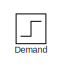
[diagram: root canvas - part 1/3, top left region]
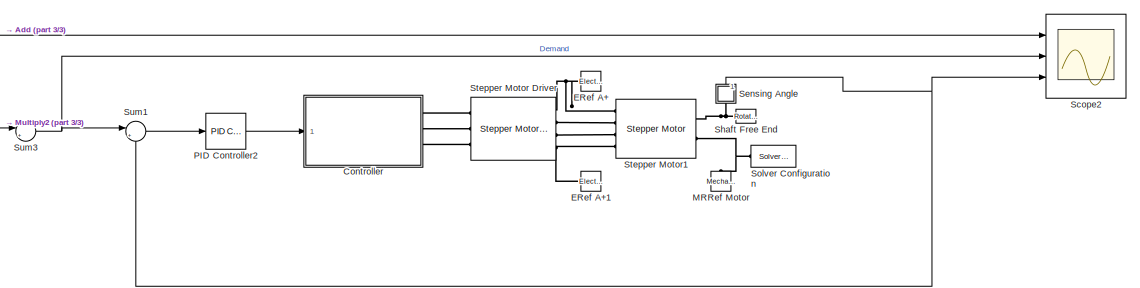
[diagram: root canvas - part 2/3, central region]
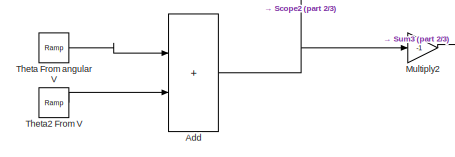
[diagram: root canvas - part 3/3, middle left region]
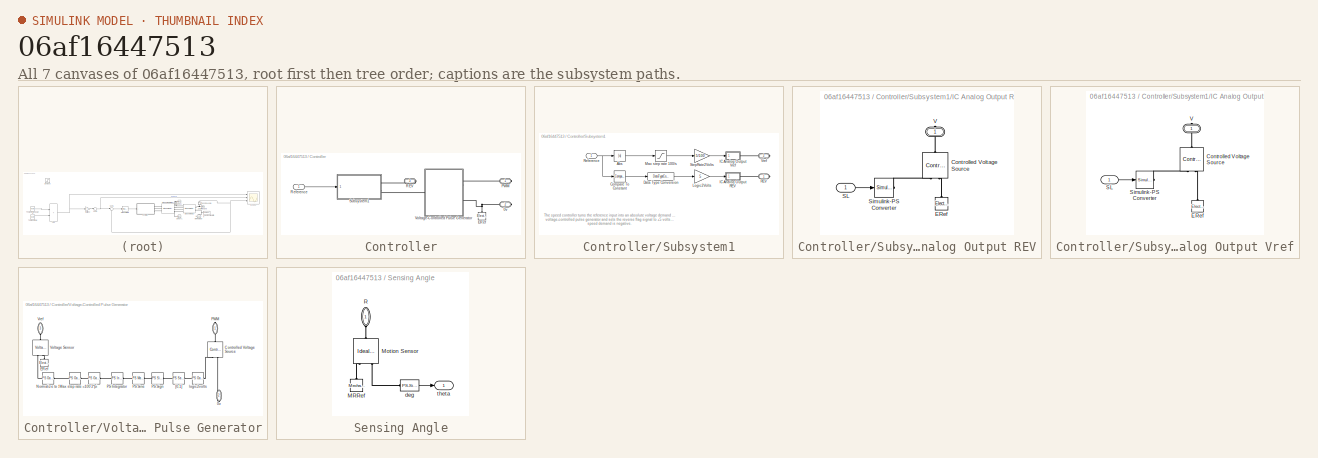
[diagram: thumbnail index - all 7 canvases of the model, root first then tree order]
MODEL slx_06af16447513
KIND model
CONFIG AbsTol = auto
CONFIG EnableMultiTasking = off
CONFIG FixedStep = auto
CONFIG MaxStep = auto
CONFIG MinStep = auto
CONFIG RelTol = 1e-3
CONFIG SampleTimeConstraint = Unconstrained
CONFIG SolverName = VariableStepAuto
CONFIG StartTime = 0.0
CONFIG StopTime = 50
BLOCK [Sum] Add
  IconShape = rectangular
  Ports = [2, 1]
BLOCK [SubSystem] Controller
  Ports = [1, 0, 0, 0, 0, 0, 3]
  RequestExecContextInheritance = off
BLOCK [PMIOPort] Controller/0v
  Port = 2
  Side = Right
BLOCK [Reference] Controller/ERef  REF=fl_lib/Electrical/Electrical Elements/Electrical Reference
  NameLocation = right
  Ports = [0, 0, 0, 0, 0, 1]
  SourceBlock = fl_lib/Electrical/Electrical Elements/Electrical Reference
  SourceProductName = Foundation Library
  SourceType = Electrical Reference
BLOCK [PMIOPort] Controller/PWM
  Side = Right
BLOCK [PMIOPort] Controller/REV
  Port = 3
  Side = Right
BLOCK [Inport] Controller/Reference
  NameLocation = top
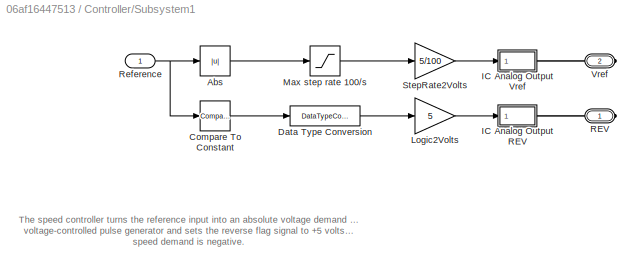
BLOCK [SubSystem] Controller/Subsystem1
  Ports = [1, 0, 0, 0, 0, 0, 2]
  RequestExecContextInheritance = off
BLOCK [Abs] Controller/Subsystem1/Abs
  SaturateOnIntegerOverflow = off
BLOCK [Reference] Controller/Subsystem1/Compare To Constant  REF=simulink/Logic and Bit
Operations/Compare
To Constant
  Ports = [1, 1]
  SourceBlock = simulink/Logic and Bit\nOperations/Compare\nTo Constant
  SourceProductBaseCode = SL
  SourceType = Compare To Constant
BLOCK [DataTypeConversion] Controller/Subsystem1/Data Type Conversion
  RndMeth = Floor
  SaturateOnIntegerOverflow = off
BLOCK [SubSystem] Controller/Subsystem1/IC Analog Output REV
  Ports = [1, 0, 0, 0, 0, 0, 1]
  RequestExecContextInheritance = off
BLOCK [Reference] Controller/Subsystem1/IC Analog Output REV/Controlled Voltage Source  REF=fl_lib/Electrical/Electrical Sources/Controlled Voltage
Source
  NameLocation = right
  Ports = [0, 0, 0, 0, 0, 1, 2]
  SourceBlock = fl_lib/Electrical/Electrical Sources/Controlled Voltage\nSource
  SourceProductName = Foundation Library
  SourceType = Controlled Voltage\nSource
BLOCK [Reference] Controller/Subsystem1/IC Analog Output REV/ERef  REF=fl_lib/Electrical/Electrical Elements/Electrical Reference
  NameLocation = right
  Ports = [0, 0, 0, 0, 0, 1]
  SourceBlock = fl_lib/Electrical/Electrical Elements/Electrical Reference
  SourceProductName = Foundation Library
  SourceType = Electrical Reference
BLOCK [Inport] Controller/Subsystem1/IC Analog Output REV/SL
BLOCK [Reference] Controller/Subsystem1/IC Analog Output REV/Simulink-PS Converter  REF=nesl_utility/Simulink-PS
Converter
  Ports = [1, 0, 0, 0, 0, 0, 1]
  SourceBlock = nesl_utility/Simulink-PS\nConverter
  SourceProductName = Utilities
  SourceType = Simulink-PS\nConverter
BLOCK [PMIOPort] Controller/Subsystem1/IC Analog Output REV/V
  NameLocation = right
  Side = Right
BLOCK [SubSystem] Controller/Subsystem1/IC Analog Output Vref
  Ports = [1, 0, 0, 0, 0, 0, 1]
  RequestExecContextInheritance = off
BLOCK [Reference] Controller/Subsystem1/IC Analog Output Vref/Controlled Voltage Source  REF=fl_lib/Electrical/Electrical Sources/Controlled Voltage
Source
  NameLocation = right
  Ports = [0, 0, 0, 0, 0, 1, 2]
  SourceBlock = fl_lib/Electrical/Electrical Sources/Controlled Voltage\nSource
  SourceProductName = Foundation Library
  SourceType = Controlled Voltage\nSource
BLOCK [Reference] Controller/Subsystem1/IC Analog Output Vref/ERef  REF=fl_lib/Electrical/Electrical Elements/Electrical Reference
  NameLocation = right
  Ports = [0, 0, 0, 0, 0, 1]
  SourceBlock = fl_lib/Electrical/Electrical Elements/Electrical Reference
  SourceProductName = Foundation Library
  SourceType = Electrical Reference
BLOCK [Inport] Controller/Subsystem1/IC Analog Output Vref/SL
BLOCK [Reference] Controller/Subsystem1/IC Analog Output Vref/Simulink-PS Converter  REF=nesl_utility/Simulink-PS
Converter
  Ports = [1, 0, 0, 0, 0, 0, 1]
  SourceBlock = nesl_utility/Simulink-PS\nConverter
  SourceProductName = Utilities
  SourceType = Simulink-PS\nConverter
BLOCK [PMIOPort] Controller/Subsystem1/IC Analog Output Vref/V
  NameLocation = right
  Side = Right
BLOCK [Gain] Controller/Subsystem1/Logic2Volts
  Gain = 5
BLOCK [Saturate] Controller/Subsystem1/Max step rate 100//s
  LowerLimit = 0
  UpperLimit = 100
BLOCK [PMIOPort] Controller/Subsystem1/REV
  Side = Right
BLOCK [Inport] Controller/Subsystem1/Reference
  NameLocation = top
BLOCK [Gain] Controller/Subsystem1/StepRate2Volts
  Gain = 5/100
BLOCK [PMIOPort] Controller/Subsystem1/Vref
  Port = 2
  Side = Right
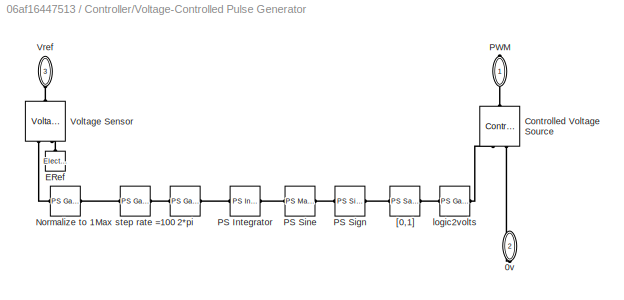
BLOCK [SubSystem] Controller/Voltage-Controlled Pulse Generator
  Ports = [0, 0, 0, 0, 0, 1, 2]
  RequestExecContextInheritance = off
BLOCK [PMIOPort] Controller/Voltage-Controlled Pulse Generator/0v
  NameLocation = left
  Port = 2
  Side = Right
BLOCK [Reference] Controller/Voltage-Controlled Pulse Generator/2*pi  REF=fl_ps_legacy_lib/Legacy Physical
Signals/Functions/PS Gain
  Ports = [0, 0, 0, 0, 0, 1, 1]
  SourceBlock = fl_ps_legacy_lib/Legacy Physical\nSignals/Functions/PS Gain
  SourceProductBaseCode = SS
  SourceType = PS Gain
BLOCK [Reference] Controller/Voltage-Controlled Pulse Generator/Controlled Voltage Source  REF=fl_lib/Electrical/Electrical Sources/Controlled Voltage
Source
  NameLocation = left
  Ports = [0, 0, 0, 0, 0, 1, 2]
  SourceBlock = fl_lib/Electrical/Electrical Sources/Controlled Voltage\nSource
  SourceProductName = Foundation Library
  SourceType = Controlled Voltage\nSource
BLOCK [Reference] Controller/Voltage-Controlled Pulse Generator/ERef  REF=fl_lib/Electrical/Electrical Elements/Electrical Reference
  NameLocation = right
  Ports = [0, 0, 0, 0, 0, 1]
  SourceBlock = fl_lib/Electrical/Electrical Elements/Electrical Reference
  SourceProductName = Foundation Library
  SourceType = Electrical Reference
BLOCK [Reference] Controller/Voltage-Controlled Pulse Generator/Max step rate =100  REF=fl_ps_legacy_lib/Legacy Physical
Signals/Functions/PS Gain
  NameLocation = top
  Ports = [0, 0, 0, 0, 0, 1, 1]
  SourceBlock = fl_ps_legacy_lib/Legacy Physical\nSignals/Functions/PS Gain
  SourceProductBaseCode = SS
  SourceType = PS Gain
BLOCK [Reference] Controller/Voltage-Controlled Pulse Generator/Normalize to 1  REF=fl_ps_legacy_lib/Legacy Physical
Signals/Functions/PS Gain
  Ports = [0, 0, 0, 0, 0, 1, 1]
  SourceBlock = fl_ps_legacy_lib/Legacy Physical\nSignals/Functions/PS Gain
  SourceProductBaseCode = SS
  SourceType = PS Gain
BLOCK [Reference] Controller/Voltage-Controlled Pulse Generator/PS Integrator  REF=fl_ps_legacy_lib/Legacy Physical
Signals/Linear Operators/PS Integrator
  NameLocation = top
  Ports = [0, 0, 0, 0, 0, 1, 1]
  SourceBlock = fl_ps_legacy_lib/Legacy Physical\nSignals/Linear Operators/PS Integrator
  SourceProductBaseCode = SS
  SourceType = PS Integrator
BLOCK [Reference] Controller/Voltage-Controlled Pulse Generator/PS Sign  REF=fl_ps_legacy_lib/Legacy Physical
Signals/Nonlinear Operators/PS Sign
  Ports = [0, 0, 0, 0, 0, 1, 1]
  SourceBlock = fl_ps_legacy_lib/Legacy Physical\nSignals/Nonlinear Operators/PS Sign
  SourceProductBaseCode = SS
  SourceType = PS Sign
BLOCK [Reference] Controller/Voltage-Controlled Pulse Generator/PS Sine  REF=fl_ps_legacy_lib/Legacy Physical
Signals/Functions/PS Math Function
  Ports = [0, 0, 0, 0, 0, 1, 1]
  SourceBlock = fl_ps_legacy_lib/Legacy Physical\nSignals/Functions/PS Math Function
  SourceProductBaseCode = SS
  SourceType = PS Math Function
BLOCK [PMIOPort] Controller/Voltage-Controlled Pulse Generator/PWM
  NameLocation = left
  Side = Right
BLOCK [Reference] Controller/Voltage-Controlled Pulse Generator/Voltage Sensor  REF=fl_lib/Electrical/Electrical Sensors/Voltage Sensor
  NameLocation = right
  Ports = [0, 0, 0, 0, 0, 1, 2]
  SourceBlock = fl_lib/Electrical/Electrical Sensors/Voltage Sensor
  SourceProductName = Foundation Library
  SourceType = Voltage Sensor
BLOCK [PMIOPort] Controller/Voltage-Controlled Pulse Generator/Vref
  NameLocation = right
  Port = 3
  Side = Left
BLOCK [Reference] Controller/Voltage-Controlled Pulse Generator/[0,1]  REF=fl_ps_legacy_lib/Legacy Physical
Signals/Nonlinear Operators/PS Saturation
  Ports = [0, 0, 0, 0, 0, 1, 1]
  SourceBlock = fl_ps_legacy_lib/Legacy Physical\nSignals/Nonlinear Operators/PS Saturation
  SourceProductBaseCode = SS
  SourceType = PS Saturation
BLOCK [Reference] Controller/Voltage-Controlled Pulse Generator/logic2volts  REF=fl_ps_legacy_lib/Legacy Physical
Signals/Functions/PS Gain
  Ports = [0, 0, 0, 0, 0, 1, 1]
  SourceBlock = fl_ps_legacy_lib/Legacy Physical\nSignals/Functions/PS Gain
  SourceProductBaseCode = SS
  SourceType = PS Gain
BLOCK [Step] Demand
  After = 10
  SampleTime = 0
BLOCK [Reference] ERef A+  REF=fl_lib/Electrical/Electrical Elements/Electrical Reference
  NameLocation = top
  Ports = [0, 0, 0, 0, 0, 1]
  SourceBlock = fl_lib/Electrical/Electrical Elements/Electrical Reference
  SourceProductName = Foundation Library
  SourceType = Electrical Reference
BLOCK [Reference] ERef A+1  REF=fl_lib/Electrical/Electrical Elements/Electrical Reference
  NameLocation = top
  Ports = [0, 0, 0, 0, 0, 1]
  SourceBlock = fl_lib/Electrical/Electrical Elements/Electrical Reference
  SourceProductName = Foundation Library
  SourceType = Electrical Reference
BLOCK [Reference] MRRef Motor  REF=fl_lib/Mechanical/Rotational Elements/Mechanical
Rotational Reference
  NameLocation = left
  Ports = [0, 0, 0, 0, 0, 1]
  SourceBlock = fl_lib/Mechanical/Rotational Elements/Mechanical\nRotational Reference
  SourceProductName = Foundation Library
  SourceType = Mechanical\nRotational Reference
BLOCK [Gain] Multiply2
  Gain = -1
BLOCK [Reference] PID Controller2  REF=pid_lib/PID Controller
  Ports = [1, 1]
  SourceBlock = pid_lib/PID Controller
  SourceProductBaseCode = SL
  SourceType = PID 1dof
BLOCK [Scope] Scope2
  Floating = off
  NumInputPorts = 3
  Ports = [3]
  ScopeSpecificationString = Simulink.scopes.TimeScopeBlockCfg('CurrentConfiguration', extmgr.ConfigurationSet(extmgr.Configuration('Core','General UI',true),extmgr.Configuration('Core','Source UI',true),extmgr.Configuration('Sources','WiredSimulink',true,'DataLoggingVariableName','ScopeData1'),extmgr.Configuration('Visuals','Time Domain',true,'SerializedDisplays',{struct('MinYLimReal','-124.97781','MaxYLimReal','124.97781','...<+1498ch>
BLOCK [SubSystem] Sensing Angle
  NameLocation = left
  Ports = [0, 1, 0, 0, 0, 1]
  RequestExecContextInheritance = off
BLOCK [Reference] Sensing Angle/MRRef  REF=fl_lib/Mechanical/Rotational Elements/Mechanical
Rotational Reference
  NameLocation = left
  Ports = [0, 0, 0, 0, 0, 1]
  SourceBlock = fl_lib/Mechanical/Rotational Elements/Mechanical\nRotational Reference
  SourceProductName = Foundation Library
  SourceType = Mechanical\nRotational Reference
BLOCK [Reference] Sensing Angle/Motion Sensor  REF=fl_lib/Mechanical/Mechanical Sensors/Ideal Rotational
Motion Sensor
  NameLocation = left
  Ports = [0, 0, 0, 0, 0, 1, 3]
  SourceBlock = fl_lib/Mechanical/Mechanical Sensors/Ideal Rotational\nMotion Sensor
  SourceProductName = Foundation Library
  SourceType = Ideal Rotational\nMotion Sensor
BLOCK [PMIOPort] Sensing Angle/R
  NameLocation = left
  Side = Left
BLOCK [Reference] Sensing Angle/deg  REF=nesl_utility/PS-Simulink
Converter
  Ports = [0, 1, 0, 0, 0, 1]
  SourceBlock = nesl_utility/PS-Simulink\nConverter
  SourceProductName = Utilities
  SourceType = PS-Simulink\nConverter
BLOCK [Outport] Sensing Angle/theta
  VectorParamsAs1DForOutWhenUnconnected = off
BLOCK [Reference] Shaft Free End  REF=fl_lib/Mechanical/Rotational Elements/Rotational Free End
  Ports = [0, 0, 0, 0, 0, 1]
  SourceBlock = fl_lib/Mechanical/Rotational Elements/Rotational Free End
  SourceProductName = Foundation Library
  SourceType = Rotational Free End
BLOCK [Reference] Solver Configuration  REF=nesl_utility/Solver
Configuration
  Ports = [0, 0, 0, 0, 0, 0, 1]
  SourceBlock = nesl_utility/Solver\nConfiguration
  SourceProductName = Utilities
  SourceType = Solver\nConfiguration
BLOCK [Reference] Stepper Motor Driver  REF=ee_lib/Electromechanical/Reluctance & Stepper/Stepper Motor Driver
  Ports = [0, 0, 0, 0, 0, 3, 4]
  SourceBlock = ee_lib/Electromechanical/Reluctance & Stepper/Stepper Motor Driver
  SourceProductName = Electrical
  SourceType = Stepper Motor Driver
BLOCK [Reference] Stepper Motor1  REF=ee_lib/Electromechanical/Reluctance & Stepper/Stepper Motor
  Ports = [0, 0, 0, 0, 0, 4, 2]
  SourceBlock = ee_lib/Electromechanical/Reluctance & Stepper/Stepper Motor
  SourceProductName = Electrical
  SourceType = Stepper Motor
BLOCK [Sum] Sum1
  Inputs = |+-
  Ports = [2, 1]
BLOCK [Sum] Sum3
  Inputs = |+-
  Ports = [2, 1]
BLOCK [Reference] Theta From angular V  REF=simulink/Sources/Ramp
  Ports = [0, 1]
  SourceBlock = simulink/Sources/Ramp
  SourceProductBaseCode = SL
  SourceType = Ramp
BLOCK [Reference] Theta2 From V  REF=simulink/Sources/Ramp
  Ports = [0, 1]
  SourceBlock = simulink/Sources/Ramp
  SourceProductBaseCode = SL
  SourceType = Ramp
ANNOTATION Controller/Subsystem1: The speed controller turns the reference input into an absolute voltage demand for the voltage-controlled pulse generator and sets the reverse flag signal to +5 volts when the speed demand is negative.
NET Add:1 -> Multiply2:1, Scope2:1
LINE Controller/Reference:1 -> Controller/Subsystem1:1
LINE Controller/Subsystem1/Abs:1 -> Controller/Subsystem1/Max step rate 100//s:1
LINE Controller/Subsystem1/Compare To Constant:1 -> Controller/Subsystem1/Data Type Conversion:1
LINE Controller/Subsystem1/Data Type Conversion:1 -> Controller/Subsystem1/Logic2Volts:1
LINE Controller/Subsystem1/IC Analog Output REV/SL:1 -> Controller/Subsystem1/IC Analog Output REV/Simulink-PS Converter:1
LINE Controller/Subsystem1/IC Analog Output Vref/SL:1 -> Controller/Subsystem1/IC Analog Output Vref/Simulink-PS Converter:1
LINE Controller/Subsystem1/Logic2Volts:1 -> Controller/Subsystem1/IC Analog Output REV:1
LINE Controller/Subsystem1/Max step rate 100//s:1 -> Controller/Subsystem1/StepRate2Volts:1
NET Controller/Subsystem1/Reference:1 -> Controller/Subsystem1/Abs:1, Controller/Subsystem1/Compare To Constant:1
LINE Controller/Subsystem1/StepRate2Volts:1 -> Controller/Subsystem1/IC Analog Output Vref:1
LINE Multiply2:1 -> Sum3:1
LINE PID Controller2:1 -> Controller:1
LINE Sensing Angle/deg:1 -> Sensing Angle/theta:1
NET Sensing Angle:1 -> Scope2:3, Sum1:2
LINE Sum1:1 -> PID Controller2:1
NET Sum3:1 -> Scope2:2, Sum1:1
LINE Theta From angular V:1 -> Add:1
LINE Theta2 From V:1 -> Add:2
PNET net1: Controller/0v:RConn1 -- Controller/ERef:LConn1 -- Controller/Voltage-Controlled Pulse Generator:RConn2
PLINE Controller/PWM:RConn1 -- Controller/Voltage-Controlled Pulse Generator:RConn1
PLINE Controller/REV:RConn1 -- Controller/Subsystem1:RConn1
PLINE Controller/Subsystem1/IC Analog Output REV/Controlled Voltage Source:LConn1 -- Controller/Subsystem1/IC Analog Output REV/V:RConn1
PLINE Controller/Subsystem1/IC Analog Output REV/Controlled Voltage Source:RConn1 -- Controller/Subsystem1/IC Analog Output REV/Simulink-PS Converter:RConn1
PLINE Controller/Subsystem1/IC Analog Output REV/Controlled Voltage Source:RConn2 -- Controller/Subsystem1/IC Analog Output REV/ERef:LConn1
PLINE Controller/Subsystem1/IC Analog Output REV:RConn1 -- Controller/Subsystem1/REV:RConn1
PLINE Controller/Subsystem1/IC Analog Output Vref/Controlled Voltage Source:LConn1 -- Controller/Subsystem1/IC Analog Output Vref/V:RConn1
PLINE Controller/Subsystem1/IC Analog Output Vref/Controlled Voltage Source:RConn1 -- Controller/Subsystem1/IC Analog Output Vref/Simulink-PS Converter:RConn1
PLINE Controller/Subsystem1/IC Analog Output Vref/Controlled Voltage Source:RConn2 -- Controller/Subsystem1/IC Analog Output Vref/ERef:LConn1
PLINE Controller/Subsystem1/IC Analog Output Vref:RConn1 -- Controller/Subsystem1/Vref:RConn1
PLINE Controller/Subsystem1:RConn2 -- Controller/Voltage-Controlled Pulse Generator:LConn1
PLINE Controller/Voltage-Controlled Pulse Generator/0v:RConn1 -- Controller/Voltage-Controlled Pulse Generator/Controlled Voltage Source:RConn2
PLINE Controller/Voltage-Controlled Pulse Generator/2*pi:LConn1 -- Controller/Voltage-Controlled Pulse Generator/Max step rate =100:RConn1
PLINE Controller/Voltage-Controlled Pulse Generator/2*pi:RConn1 -- Controller/Voltage-Controlled Pulse Generator/PS Integrator:LConn1
PLINE Controller/Voltage-Controlled Pulse Generator/Controlled Voltage Source:LConn1 -- Controller/Voltage-Controlled Pulse Generator/PWM:RConn1
PLINE Controller/Voltage-Controlled Pulse Generator/Controlled Voltage Source:RConn1 -- Controller/Voltage-Controlled Pulse Generator/logic2volts:RConn1
PLINE Controller/Voltage-Controlled Pulse Generator/ERef:LConn1 -- Controller/Voltage-Controlled Pulse Generator/Voltage Sensor:RConn2
PLINE Controller/Voltage-Controlled Pulse Generator/Max step rate =100:LConn1 -- Controller/Voltage-Controlled Pulse Generator/Normalize to 1:RConn1
PLINE Controller/Voltage-Controlled Pulse Generator/Normalize to 1:LConn1 -- Controller/Voltage-Controlled Pulse Generator/Voltage Sensor:RConn1
PLINE Controller/Voltage-Controlled Pulse Generator/PS Integrator:RConn1 -- Controller/Voltage-Controlled Pulse Generator/PS Sine:LConn1
PLINE Controller/Voltage-Controlled Pulse Generator/PS Sign:LConn1 -- Controller/Voltage-Controlled Pulse Generator/PS Sine:RConn1
PLINE Controller/Voltage-Controlled Pulse Generator/PS Sign:RConn1 -- Controller/Voltage-Controlled Pulse Generator/[0,1]:LConn1
PLINE Controller/Voltage-Controlled Pulse Generator/Voltage Sensor:LConn1 -- Controller/Voltage-Controlled Pulse Generator/Vref:RConn1
PLINE Controller/Voltage-Controlled Pulse Generator/[0,1]:RConn1 -- Controller/Voltage-Controlled Pulse Generator/logic2volts:LConn1
PLINE Controller:RConn1 -- Stepper Motor Driver:LConn1
PLINE Controller:RConn2 -- Stepper Motor Driver:LConn2
PLINE Controller:RConn3 -- Stepper Motor Driver:LConn3
PNET net2: ERef A+1:LConn1 -- Stepper Motor Driver:RConn4 -- Stepper Motor1:LConn4
PNET net3: ERef A+:LConn1 -- Stepper Motor Driver:RConn1 -- Stepper Motor1:LConn1
PNET net4: MRRef Motor:LConn1 -- Solver Configuration:RConn1 -- Stepper Motor1:RConn2
PLINE Sensing Angle/MRRef:LConn1 -- Sensing Angle/Motion Sensor:RConn1
PLINE Sensing Angle/Motion Sensor:LConn1 -- Sensing Angle/R:RConn1
PLINE Sensing Angle/Motion Sensor:RConn3 -- Sensing Angle/deg:LConn1
PNET net5: Sensing Angle:LConn1 -- Shaft Free End:LConn1 -- Stepper Motor1:RConn1
PLINE Stepper Motor Driver:RConn2 -- Stepper Motor1:LConn2
PLINE Stepper Motor Driver:RConn3 -- Stepper Motor1:LConn3
note: NET lines group one-source signal fan-out (src -> all destinations, sorted); 1:1 wires keep LINE; PNET lines group multi-terminal physical nets as a canonical sorted terminal list (undirected conserving connections); 2-terminal nets keep the pairwise PLINE form
